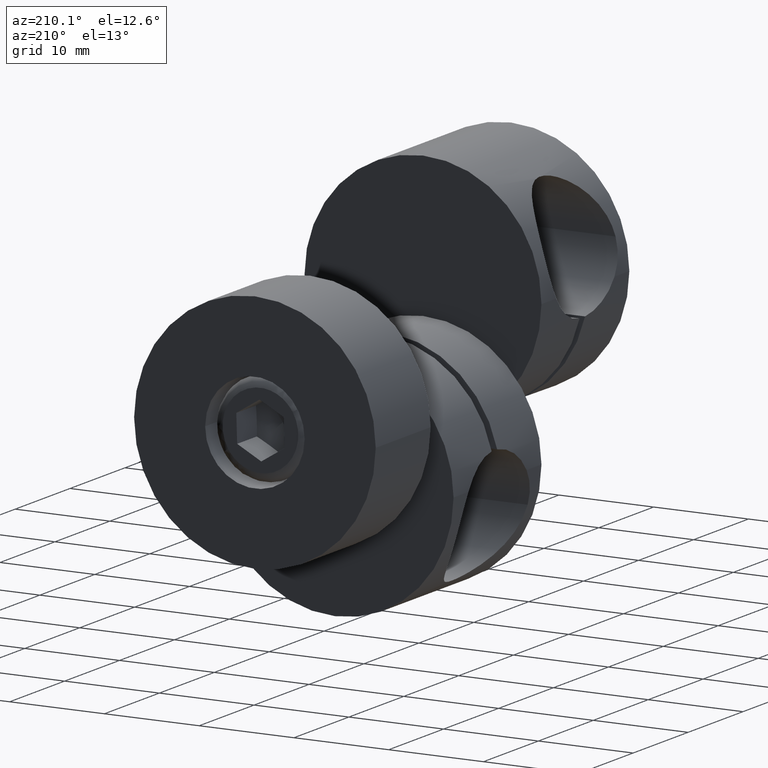
[diagram: clean part render]
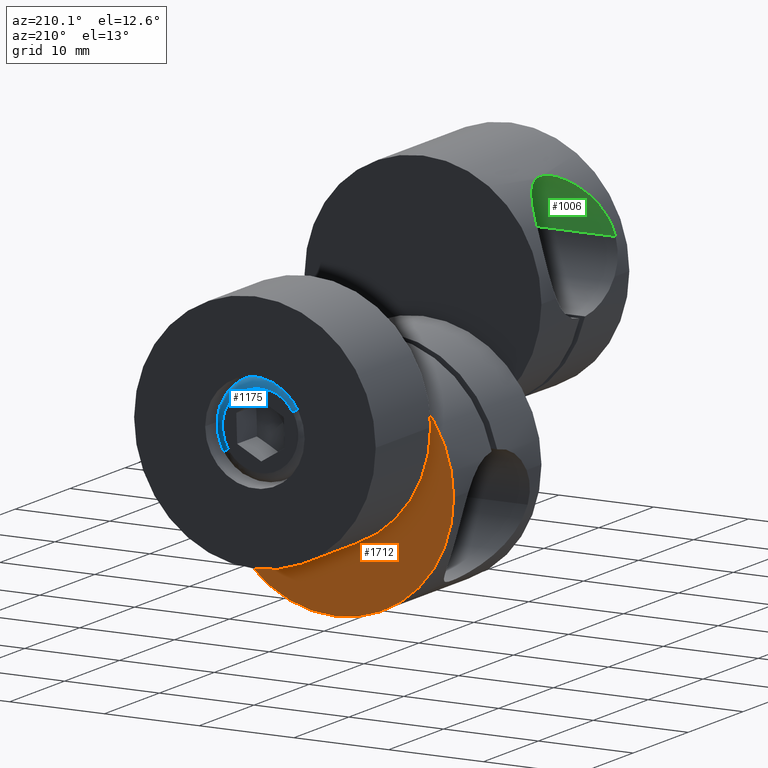
[diagram: same view with three faces highlighted in distinct colors, each labeled with its STEP entity id]
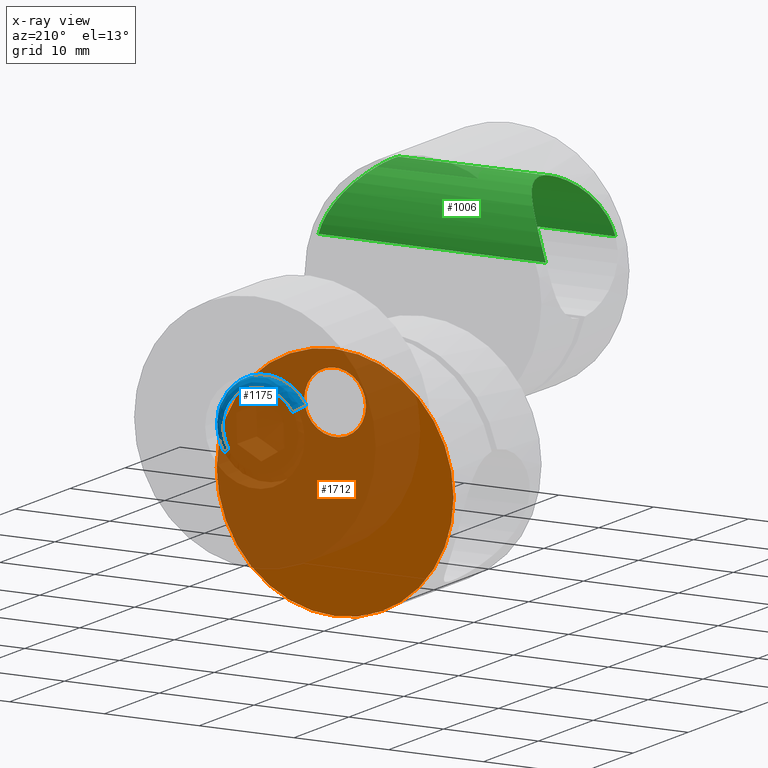
[diagram: x-ray of the same camera — body ghosted, the three highlighted faces saturated]
A machine part, auxiliary view with three faces highlighted in distinct colors.
The next image is the same camera in x-ray (body ghosted, the three faces saturated) — at least one of them is partly hidden behind the body in this view.
Their STEP definitions:

[orange] entity #1712 — the highlighted planar face has unit normal (0, -1, 0).
#39 = FACE_OUTER_BOUND ( 'NONE', #1307, .T. ) ;
#64 = DIRECTION ( 'NONE',  ( 0.0000000000000000000, -1.000000000000000000, 1.224606353822377300E-016 ) ) ;
#119 = CIRCLE ( 'NONE', #1918, 3.250000000000001800 ) ;
#193 = DIRECTION ( 'NONE',  ( 1.000000000000000000, 0.0000000000000000000, 0.0000000000000000000 ) ) ;
#203 = DIRECTION ( 'NONE',  ( 1.000000000000000000, 0.0000000000000000000, 0.0000000000000000000 ) ) ;
#215 = PLANE ( 'NONE',  #636 ) ;
#236 = CARTESIAN_POINT ( 'NONE',  ( 0.0000000000000000000, 8.000000000000001800, -9.796850830579018100E-016 ) ) ;
#315 = ORIENTED_EDGE ( 'NONE', *, *, #2139, .F. ) ;
#349 = EDGE_LOOP ( 'NONE', ( #512, #687 ) ) ;
#438 = DIRECTION ( 'NONE',  ( 1.000000000000000000, 0.0000000000000000000, 0.0000000000000000000 ) ) ;
#512 = ORIENTED_EDGE ( 'NONE', *, *, #1484, .T. ) ;
#570 = CARTESIAN_POINT ( 'NONE',  ( 0.0000000000000000000, 8.000000000000001800, -9.796850830579018100E-016 ) ) ;
#636 = AXIS2_PLACEMENT_3D ( 'NONE', #236, #1526, #203 ) ;
#645 = CARTESIAN_POINT ( 'NONE',  ( 3.250000000000002700, 8.000000000000003600, 7.500000000000000000 ) ) ;
#687 = ORIENTED_EDGE ( 'NONE', *, *, #1222, .T. ) ;
#817 = CARTESIAN_POINT ( 'NONE',  ( 12.50000000000000000, 8.000000000000001800, 1.530808498934191300E-015 ) ) ;
#863 = VERTEX_POINT ( 'NONE', #1167 ) ;
#913 = VERTEX_POINT ( 'NONE', #817 ) ;
#920 = VERTEX_POINT ( 'NONE', #645 ) ;
#1022 = EDGE_CURVE ( 'NONE', #913, #2284, #1843, .T. ) ;
#1057 = FACE_BOUND ( 'NONE', #349, .T. ) ;
#1124 = AXIS2_PLACEMENT_3D ( 'NONE', #570, #2045, #193 ) ;
#1126 = DIRECTION ( 'NONE',  ( 1.000000000000000000, 0.0000000000000000000, 0.0000000000000000000 ) ) ;
#1135 = CARTESIAN_POINT ( 'NONE',  ( 9.834144658631932200E-016, 8.000000000000003600, 7.500000000000000000 ) ) ;
#1167 = CARTESIAN_POINT ( 'NONE',  ( -3.250000000000000900, 8.000000000000003600, 7.500000000000000000 ) ) ;
#1222 = EDGE_CURVE ( 'NONE', #863, #920, #119, .T. ) ;
#1225 = CARTESIAN_POINT ( 'NONE',  ( 9.834144658631932200E-016, 8.000000000000003600, 7.500000000000000000 ) ) ;
#1307 = EDGE_LOOP ( 'NONE', ( #315, #1771 ) ) ;
#1354 = CARTESIAN_POINT ( 'NONE',  ( 0.0000000000000000000, 8.000000000000001800, -9.796850830579018100E-016 ) ) ;
#1484 = EDGE_CURVE ( 'NONE', #920, #863, #2263, .T. ) ;
#1490 = AXIS2_PLACEMENT_3D ( 'NONE', #1135, #1680, #1126 ) ;
#1526 = DIRECTION ( 'NONE',  ( 0.0000000000000000000, -1.000000000000000000, 1.224606353822377300E-016 ) ) ;
#1588 = AXIS2_PLACEMENT_3D ( 'NONE', #1354, #64, #438 ) ;
#1623 = DIRECTION ( 'NONE',  ( 1.000000000000000000, 0.0000000000000000000, 0.0000000000000000000 ) ) ;
#1680 = DIRECTION ( 'NONE',  ( 0.0000000000000000000, -1.000000000000000000, 1.224606353822377300E-016 ) ) ;
#1712 = ADVANCED_FACE ( 'NONE', ( #1057, #39 ), #215, .F. ) ;
#1771 = ORIENTED_EDGE ( 'NONE', *, *, #1022, .F. ) ;
#1843 = CIRCLE ( 'NONE', #1124, 12.50000000000000000 ) ;
#1918 = AXIS2_PLACEMENT_3D ( 'NONE', #1225, #2041, #1623 ) ;
#2034 = CIRCLE ( 'NONE', #1588, 12.50000000000000000 ) ;
#2041 = DIRECTION ( 'NONE',  ( 0.0000000000000000000, -1.000000000000000000, 1.224606353822377300E-016 ) ) ;
#2045 = DIRECTION ( 'NONE',  ( 0.0000000000000000000, -1.000000000000000000, 1.224606353822377300E-016 ) ) ;
#2112 = CARTESIAN_POINT ( 'NONE',  ( -12.50000000000000000, 8.000000000000001800, -3.851859888774471700E-031 ) ) ;
#2139 = EDGE_CURVE ( 'NONE', #2284, #913, #2034, .T. ) ;
#2263 = CIRCLE ( 'NONE', #1490, 3.250000000000001800 ) ;
#2284 = VERTEX_POINT ( 'NONE', #2112 ) ;

[blue] entity #1175 — the highlighted face is a freeform B-spline surface patch.
#35 = CARTESIAN_POINT ( 'NONE',  ( 3.400280457261473100, 20.59999999999999400, 5.393321853731394300 ) ) ;
#44 = DIRECTION ( 'NONE',  ( 6.268266966961504200E-016, -1.000000000000000000, 1.130397227726276000E-016 ) ) ;
#58 = CARTESIAN_POINT ( 'NONE',  ( 2.633347682835771100, 20.59999999999999400, 11.75035057157682800 ) ) ;
#97 = CARTESIAN_POINT ( 'NONE',  ( 9.517045937248344200, 21.18578643762691300, 13.36735346031791500 ) ) ;
#131 = VERTEX_POINT ( 'NONE', #1459 ) ;
#228 = CARTESIAN_POINT ( 'NONE',  ( 0.8130758352757235800, 21.59999999999998400, 16.40723906079152900 ) ) ;
#283 = CARTESIAN_POINT ( 'NONE',  ( 1.016344794094668200, 20.59999999999999100, 18.63404882598942100 ) ) ;
#292 = CARTESIAN_POINT ( 'NONE',  ( 0.8130758352757240200, 21.59999999999999400, 16.40723906079147600 ) ) ;
#323 = ORIENTED_EDGE ( 'NONE', *, *, #1595, .F. ) ;
#376 = DIRECTION ( 'NONE',  ( 0.8500701143153676100, 0.0000000000000000000, -0.5266695365671514300 ) ) ;
#379 = VERTEX_POINT ( 'NONE', #58 ) ;
#382 = VERTEX_POINT ( 'NONE', #1886 ) ;
#395 = CARTESIAN_POINT ( 'NONE',  ( 3.400280457261471300, 21.59999999999999400, 5.393321853731390700 ) ) ;
#455 = CARTESIAN_POINT ( 'NONE',  ( 4.250350571576837500, 20.59999999999999400, 4.866652317164239100 ) ) ;
#460 = CARTESIAN_POINT ( 'NONE',  ( 0.9321480345424016900, 21.60000000000000900, 17.71167402041957900 ) ) ;
#467 = AXIS2_PLACEMENT_3D ( 'NONE', #1783, #678, #1423 ) ;
#538 = ORIENTED_EDGE ( 'NONE', *, *, #1267, .F. ) ;
#552 = CARTESIAN_POINT ( 'NONE',  ( -3.400280457261455800, 21.59999999999999400, 9.606678146268585300 ) ) ;
#557 = CIRCLE ( 'NONE', #628, 1.000000000000000400 ) ;
#628 = AXIS2_PLACEMENT_3D ( 'NONE', #1954, #1033, #841 ) ;
#660 = CARTESIAN_POINT ( 'NONE',  ( 7.613636749798623700, 21.59999999999999800, 12.19388276825430300 ) ) ;
#678 = DIRECTION ( 'NONE',  ( 6.268266966961504200E-016, -1.000000000000000000, 1.130397227726276000E-016 ) ) ;
#692 = EDGE_CURVE ( 'NONE', #382, #131, #2188, .T. ) ;
#697 = VERTEX_POINT ( 'NONE', #1546 ) ;
#727 = DIRECTION ( 'NONE',  ( 0.5266695365671528700, -4.368582271026613000E-016, 0.8500701143153667200 ) ) ;
#745 = EDGE_CURVE ( 'NONE', #697, #382, #1270, .T. ) ;
#831 = CARTESIAN_POINT ( 'NONE',  ( -4.250350571576835700, 21.18578643762690600, 10.13334768283574000 ) ) ;
#841 = DIRECTION ( 'NONE',  ( -0.8500701143153672800, 0.0000000000000000000, 0.5266695365671521000 ) ) ;
#843 = CARTESIAN_POINT ( 'NONE',  ( 1.016344794094663900, 21.18578643762690600, 18.63404882598942400 ) ) ;
#970 =( BOUNDED_SURFACE ( )  B_SPLINE_SURFACE ( 3, 3, ( 
 ( #455, #1576, #283, #1946 ),
 ( #2315, #97, #843, #831 ),
 ( #2133, #1016, #460, #1025 ),
 ( #1938, #660, #292, #1376 ) ),
 .UNSPECIFIED., .F., .F., .F. ) 
 B_SPLINE_SURFACE_WITH_KNOTS ( ( 4, 4 ),
 ( 4, 4 ),
 ( 0.0000000000000000000, 1.000000000000000000 ),
 ( 0.0000000000000000000, 1.000000000000000000 ),
 .UNSPECIFIED. ) 
 GEOMETRIC_REPRESENTATION_ITEM ( )  RATIONAL_B_SPLINE_SURFACE ( (
 ( 1.000000000000000000, 0.3333333333333330900, 0.3333333333333330900, 1.000000000000000000),
 ( 0.8047378541243590500, 0.2682459513747861800, 0.2682459513747861800, 0.8047378541243590500),
 ( 0.8047378541243590500, 0.2682459513747861800, 0.2682459513747861800, 0.8047378541243590500),
 ( 1.000000000000000000, 0.3333333333333330900, 0.3333333333333330900, 1.000000000000000000) ) ) 
 REPRESENTATION_ITEM ( '' )  SURFACE ( )  );
#1016 = CARTESIAN_POINT ( 'NONE',  ( 8.728628037061113800, 21.60000000000001200, 12.88128598461782400 ) ) ;
#1025 = CARTESIAN_POINT ( 'NONE',  ( -3.898240001259352100, 21.60000000000000500, 9.915194017900866200 ) ) ;
#1033 = DIRECTION ( 'NONE',  ( -0.5266695365671529800, -1.289302658935427100E-015, -0.8500701143153666100 ) ) ;
#1036 = EDGE_LOOP ( 'NONE', ( #323, #538, #1852, #1402, #2178 ) ) ;
#1082 = VERTEX_POINT ( 'NONE', #1152 ) ;
#1123 = CARTESIAN_POINT ( 'NONE',  ( 7.613636749798670800, 21.59999999999999800, 12.19388276825432600 ) ) ;
#1152 = CARTESIAN_POINT ( 'NONE',  ( -4.250350571576832200, 20.59999999999999100, 10.13334768283574200 ) ) ;
#1164 = DIRECTION ( 'NONE',  ( 0.5266695365671527600, -6.938893903907231300E-016, 0.8500701143153667200 ) ) ;
#1175 = ADVANCED_FACE ( 'NONE', ( #1384 ), #970, .T. ) ;
#1267 = EDGE_CURVE ( 'NONE', #379, #1082, #1594, .T. ) ;
#1270 = CIRCLE ( 'NONE', #1696, 1.000000000000000000 ) ;
#1339 = CIRCLE ( 'NONE', #1864, 4.999999999999998200 ) ;
#1376 = CARTESIAN_POINT ( 'NONE',  ( -3.400280457261446500, 21.59999999999999100, 9.606678146268576400 ) ) ;
#1384 = FACE_OUTER_BOUND ( 'NONE', #1036, .T. ) ;
#1402 = ORIENTED_EDGE ( 'NONE', *, *, #745, .T. ) ;
#1423 = DIRECTION ( 'NONE',  ( 0.5266695365671527600, -6.938893903907231300E-016, 0.8500701143153667200 ) ) ;
#1459 = CARTESIAN_POINT ( 'NONE',  ( -3.400280457261455800, 21.59999999999999400, 9.606678146268585300 ) ) ;
#1546 = CARTESIAN_POINT ( 'NONE',  ( 4.250350571576837500, 20.59999999999999800, 4.866652317164242600 ) ) ;
#1576 = CARTESIAN_POINT ( 'NONE',  ( 9.517045937248347800, 20.59999999999999800, 13.36735346031791500 ) ) ;
#1594 = CIRCLE ( 'NONE', #467, 4.999999999999998200 ) ;
#1595 = EDGE_CURVE ( 'NONE', #1082, #131, #557, .T. ) ;
#1696 = AXIS2_PLACEMENT_3D ( 'NONE', #35, #727, #376 ) ;
#1711 = EDGE_CURVE ( 'NONE', #697, #379, #1339, .T. ) ;
#1783 = CARTESIAN_POINT ( 'NONE',  ( 3.467239618993475800E-015, 20.59999999999999400, 7.499999999999992000 ) ) ;
#1852 = ORIENTED_EDGE ( 'NONE', *, *, #1711, .F. ) ;
#1864 = AXIS2_PLACEMENT_3D ( 'NONE', #1879, #44, #1164 ) ;
#1879 = CARTESIAN_POINT ( 'NONE',  ( 3.467239618993475800E-015, 20.59999999999999400, 7.499999999999992000 ) ) ;
#1886 = CARTESIAN_POINT ( 'NONE',  ( 3.400280457261471300, 21.59999999999999400, 5.393321853731390700 ) ) ;
#1938 = CARTESIAN_POINT ( 'NONE',  ( 3.400280457261449600, 21.59999999999999400, 5.393321853731405800 ) ) ;
#1946 = CARTESIAN_POINT ( 'NONE',  ( -4.250350571576835700, 20.59999999999998700, 10.13334768283574200 ) ) ;
#1954 = CARTESIAN_POINT ( 'NONE',  ( -3.400280457261467800, 20.59999999999999100, 9.606678146268590600 ) ) ;
#2133 = CARTESIAN_POINT ( 'NONE',  ( 3.898240001259354800, 21.60000000000000500, 5.084805982099114300 ) ) ;
#2178 = ORIENTED_EDGE ( 'NONE', *, *, #692, .T. ) ;
#2188 =( BOUNDED_CURVE ( )  B_SPLINE_CURVE ( 3, ( #395, #1123, #228, #552 ),
 .UNSPECIFIED., .F., .F. ) 
 B_SPLINE_CURVE_WITH_KNOTS ( ( 4, 4 ),
 ( 0.7500000000000000000, 1.250000000000000000 ),
 .UNSPECIFIED. ) 
 CURVE ( )  GEOMETRIC_REPRESENTATION_ITEM ( )  RATIONAL_B_SPLINE_CURVE ( ( 1.000000000000000000, 0.3333333333333330400, 0.3333333333333330400, 1.000000000000000000 ) ) 
 REPRESENTATION_ITEM ( '' )  );
#2315 = CARTESIAN_POINT ( 'NONE',  ( 4.250350571576837500, 21.18578643762690900, 4.866652317164240000 ) ) ;

[green] entity #1006 — the highlighted cylindrical surface (partial cylindrical patch) has radius 6.35 mm, axis along (1, 0, -0).
#18 = CARTESIAN_POINT ( 'NONE',  ( 7.820851540314699000, -14.86360298976977600, 24.75140350891478400 ) ) ;
#41 = CARTESIAN_POINT ( 'NONE',  ( 11.99999999999999600, -22.35000000000000100, 18.50000000000000400 ) ) ;
#85 = CARTESIAN_POINT ( 'NONE',  ( -10.11379831694967800, -21.06024554740567800, 22.35662812011513600 ) ) ;
#106 = ORIENTED_EDGE ( 'NONE', *, *, #1330, .F. ) ;
#150 = CARTESIAN_POINT ( 'NONE',  ( 11.18405761449237300, -22.00083271321781500, 20.58707682559041200 ) ) ;
#157 = CARTESIAN_POINT ( 'NONE',  ( 8.745003058484965000, -19.29364196974166700, 23.93284983060709700 ) ) ;
#164 = CARTESIAN_POINT ( 'NONE',  ( 8.249108199355431400, -18.37585979590484800, 24.39244461895301100 ) ) ;
#172 = CARTESIAN_POINT ( 'NONE',  ( 8.003614251583091000, -17.76965135301139400, 24.60223377175134400 ) ) ;
#178 = CARTESIAN_POINT ( 'NONE',  ( 7.696267287448138800, -15.76492502467570500, 24.84974466709606100 ) ) ;
#183 = CARTESIAN_POINT ( 'NONE',  ( 10.55868049368674700, -10.50795749927299700, 21.69383862105067000 ) ) ;
#190 = VECTOR ( 'NONE', #716, 1000.000000000000000 ) ;
#210 = CARTESIAN_POINT ( 'NONE',  ( 9.883194708088971900, -11.18792788686209500, 22.66194765786493500 ) ) ;
#235 = CARTESIAN_POINT ( 'NONE',  ( -11.99999999999999500, -22.35000000000000500, 18.50000000000000400 ) ) ;
#241 = CARTESIAN_POINT ( 'NONE',  ( 11.99999999999999600, -9.650000000000003900, 18.50000000000000400 ) ) ;
#271 = EDGE_LOOP ( 'NONE', ( #1801, #1856, #1166, #106 ) ) ;
#281 = CARTESIAN_POINT ( 'NONE',  ( -9.421854664400875400, -20.26311719731383900, 23.22259103561462400 ) ) ;
#335 = CARTESIAN_POINT ( 'NONE',  ( 7.933297874307566400, -17.55692154291006800, 24.66013807502368500 ) ) ;
#338 = VERTEX_POINT ( 'NONE', #235 ) ;
#352 = CARTESIAN_POINT ( 'NONE',  ( 7.773042468864702800, -16.90451814232297400, 24.78934861600203700 ) ) ;
#359 = CARTESIAN_POINT ( 'NONE',  ( 7.712339375000630600, -15.53844428207591300, 24.83724457953849200 ) ) ;
#371 = CARTESIAN_POINT ( 'NONE',  ( 9.077351499989207500, -12.20510128035131100, 23.59515723130119000 ) ) ;
#398 = VERTEX_POINT ( 'NONE', #899 ) ;
#404 = CARTESIAN_POINT ( 'NONE',  ( -11.63357865819251600, -9.738649087215051700, 19.57819581969985000 ) ) ;
#413 = CARTESIAN_POINT ( 'NONE',  ( -7.712580160711339300, -16.46437835146180700, 24.83705692832438700 ) ) ;
#433 = CARTESIAN_POINT ( 'NONE',  ( -9.875223424692096700, -11.19692353071803700, 22.67209253072386200 ) ) ;
#464 = EDGE_CURVE ( 'NONE', #398, #1814, #2104, .T. ) ;
#477 = CARTESIAN_POINT ( 'NONE',  ( -12.50000000000000000, -22.35000000000000100, 18.50000000000000400 ) ) ;
#515 = CARTESIAN_POINT ( 'NONE',  ( 11.08419354500064300, -21.92914183719555900, 20.78243229142778500 ) ) ;
#526 = CARTESIAN_POINT ( 'NONE',  ( 11.72009432775302600, -22.30430489700002600, 19.36900479105479200 ) ) ;
#562 = CARTESIAN_POINT ( 'NONE',  ( 11.99999999999999600, -9.650000000000003900, 18.50000000000000400 ) ) ;
#568 = CARTESIAN_POINT ( 'NONE',  ( 7.994971991289817800, -14.21513478486653500, 24.61003536391857300 ) ) ;
#596 = CARTESIAN_POINT ( 'NONE',  ( -9.184879994246079700, -12.04570919793313000, 23.48469928927593700 ) ) ;
#603 = CARTESIAN_POINT ( 'NONE',  ( -7.821665716239017700, -17.13988180292606200, 24.75075027787065800 ) ) ;
#619 = CARTESIAN_POINT ( 'NONE',  ( -7.772282499667881900, -15.09945845458842600, 24.78995150445972900 ) ) ;
#639 = CARTESIAN_POINT ( 'NONE',  ( -8.164901289436915700, -18.18666484462011500, 24.46546692029119900 ) ) ;
#653 = CARTESIAN_POINT ( 'NONE',  ( -10.56196636504767200, -21.50063361778251200, 21.69729499105458000 ) ) ;
#706 = CARTESIAN_POINT ( 'NONE',  ( 9.416928619070253200, -20.25682373643856900, 23.22817276048996500 ) ) ;
#716 = DIRECTION ( 'NONE',  ( 1.000000000000000000, 3.204747427460359600E-031, -1.361284592032124700E-061 ) ) ;
#717 = CARTESIAN_POINT ( 'NONE',  ( 10.11293218973824900, -10.94069222204211800, 22.35776870205158300 ) ) ;
#723 = CARTESIAN_POINT ( 'NONE',  ( 8.746629100433722200, -12.69345164218689200, 23.93569424947098100 ) ) ;
#748 = CARTESIAN_POINT ( 'NONE',  ( 11.37705538410025100, -9.866507575217276800, 20.19741653497462200 ) ) ;
#801 = CARTESIAN_POINT ( 'NONE',  ( -10.55847277431794700, -10.50248030559855800, 21.70292606161307000 ) ) ;
#836 = CARTESIAN_POINT ( 'NONE',  ( -8.747412649429167100, -19.30782778572609000, 23.93493986309286800 ) ) ;
#889 = EDGE_CURVE ( 'NONE', #398, #338, #2118, .T. ) ;
#899 = CARTESIAN_POINT ( 'NONE',  ( -11.99999999999999600, -9.650000000000002100, 18.50000000000000400 ) ) ;
#903 = CARTESIAN_POINT ( 'NONE',  ( 10.56099917562497100, -21.49979480329122700, 21.69888992109792600 ) ) ;
#977 = CARTESIAN_POINT ( 'NONE',  ( -7.937700410323477000, -17.57111267156213700, 24.65652617424785500 ) ) ;
#984 = CARTESIAN_POINT ( 'NONE',  ( -11.99999999999999600, -9.650000000000002100, 18.50000000000000400 ) ) ;
#993 = CARTESIAN_POINT ( 'NONE',  ( -11.37672221323947100, -9.866728368706864300, 20.19810630155466300 ) ) ;
#1006 = ADVANCED_FACE ( 'NONE', ( #2241 ), #1098, .F. ) ;
#1013 = CARTESIAN_POINT ( 'NONE',  ( -11.63541160941633600, -22.26217616823258900, 19.57358650153655000 ) ) ;
#1023 = CARTESIAN_POINT ( 'NONE',  ( -9.884119251662198700, -20.81305468029470500, 22.66071375754134500 ) ) ;
#1030 = CARTESIAN_POINT ( 'NONE',  ( -11.93673990818753900, -22.34999999999999800, 18.71689174335699600 ) ) ;
#1040 = LINE ( 'NONE', #477, #1902 ) ;
#1083 = VERTEX_POINT ( 'NONE', #41 ) ;
#1089 = CARTESIAN_POINT ( 'NONE',  ( 9.187446828654650200, -19.95767152037318900, 23.48188191881356300 ) ) ;
#1098 = CYLINDRICAL_SURFACE ( 'NONE', #2132, 6.349999999999997900 ) ;
#1136 = DIRECTION ( 'NONE',  ( 0.0000000000000000000, -1.000000000000000000, 0.0000000000000000000 ) ) ;
#1158 = CARTESIAN_POINT ( 'NONE',  ( -8.153834811427994800, -13.81796123887791900, 24.47776530966229200 ) ) ;
#1166 = ORIENTED_EDGE ( 'NONE', *, *, #1403, .F. ) ;
#1195 = CARTESIAN_POINT ( 'NONE',  ( -7.695468237215280300, -15.78313730550912700, 24.85036897717198600 ) ) ;
#1220 = CARTESIAN_POINT ( 'NONE',  ( -11.37755318207007900, -22.13386114686770200, 20.19646714792639100 ) ) ;
#1236 = DIRECTION ( 'NONE',  ( 1.000000000000000000, 3.204747427460359600E-031, -1.361284592032124700E-061 ) ) ;
#1264 = CARTESIAN_POINT ( 'NONE',  ( 8.854440919873198400, -19.46564190738588400, 23.82463886088196100 ) ) ;
#1275 = CARTESIAN_POINT ( 'NONE',  ( 8.161681695429562600, -18.17921087255636100, 24.46824621553516400 ) ) ;
#1282 = CARTESIAN_POINT ( 'NONE',  ( 7.695623569763851500, -16.22107201019609200, 24.85024761309717800 ) ) ;
#1289 = CARTESIAN_POINT ( 'NONE',  ( 10.88182748457112400, -10.22798769451626400, 21.15480014913355000 ) ) ;
#1301 = CARTESIAN_POINT ( 'NONE',  ( 10.77541073498734100, -10.31644025149207500, 21.33906402750045600 ) ) ;
#1314 = CARTESIAN_POINT ( 'NONE',  ( 8.156837939394556300, -13.81035413199600500, 24.47527253134464000 ) ) ;
#1330 = EDGE_CURVE ( 'NONE', #338, #1083, #1040, .T. ) ;
#1336 = CARTESIAN_POINT ( 'NONE',  ( -7.696435163091957000, -16.23795784948159200, 24.84961350291182600 ) ) ;
#1347 = CARTESIAN_POINT ( 'NONE',  ( -11.93579502033044900, -9.650000000000003900, 18.72013135886702200 ) ) ;
#1364 = CARTESIAN_POINT ( 'NONE',  ( -11.18373013197746600, -9.993342263189442000, 20.59973147559777100 ) ) ;
#1383 = CARTESIAN_POINT ( 'NONE',  ( -8.536851719730592000, -18.95821429063340700, 24.13436354964429100 ) ) ;
#1401 = CARTESIAN_POINT ( 'NONE',  ( -11.99999999999999500, -22.35000000000000500, 18.50000000000000400 ) ) ;
#1403 = EDGE_CURVE ( 'NONE', #1083, #1814, #1619, .T. ) ;
#1441 = CARTESIAN_POINT ( 'NONE',  ( 8.436330654495131800, -18.75572511087721100, 24.22464780318458100 ) ) ;
#1458 = CARTESIAN_POINT ( 'NONE',  ( 7.818298218894098800, -17.12504548057348300, 24.75344532723961800 ) ) ;
#1483 = CARTESIAN_POINT ( 'NONE',  ( 11.18807998118337800, -9.990309230073430400, 20.59104672253882000 ) ) ;
#1501 = CARTESIAN_POINT ( 'NONE',  ( 11.71586913483928200, -9.705276431460848800, 19.36352728477704200 ) ) ;
#1548 = CARTESIAN_POINT ( 'NONE',  ( -11.71423076642574100, -9.705903146190255600, 19.36787943973108000 ) ) ;
#1573 = CARTESIAN_POINT ( 'NONE',  ( -11.71716646865052500, -22.29516887287793000, 19.35997657364655200 ) ) ;
#1619 = B_SPLINE_CURVE_WITH_KNOTS ( 'NONE', 3,
 ( #2356, #1643, #526, #2387, #2371, #150, #515, #1995, #903, #2364, #1809, #706, #1089, #1264, #157, #2379, #1441, #164, #1275, #172, #335, #1458, #352, #1651, #1282, #178, #359, #1847, #18, #568, #1314, #2037, #723, #371, #2049, #1674, #1867, #210, #717, #2396, #183, #1301, #1289, #1483, #748, #2234, #1501, #1838, #1850, #562 ),
 .UNSPECIFIED., .F., .F.,
 ( 4, 2, 2, 2, 2, 2, 2, 2, 2, 2, 2, 2, 2, 2, 2, 2, 2, 2, 2, 2, 2, 2, 2, 2, 4 ),
 ( 0.0000000000000000000, 0.001360762488153682400, 0.002041143732230517600, 0.002721524976307353000, 0.004082287464461015200, 0.005443049952614677400, 0.006803812440768340500, 0.007484193684845167700, 0.008164574928921995700, 0.008844956172998824600, 0.009525337417075651800, 0.01020571866115247900, 0.01088609990522930600, 0.01156648114930613500, 0.01224686239338296200, 0.01360762488153661700, 0.01496838736969027300, 0.01564876861376709700, 0.01632914985784392200, 0.01768991234599756600, 0.01837029359007438800, 0.01905067483415121000, 0.02041143732230486400, 0.02109181856638169300, 0.02177219981045852600 ),
 .UNSPECIFIED. ) ;
#1643 = CARTESIAN_POINT ( 'NONE',  ( 11.87089798146795000, -22.35000000000000500, 18.94263549210989300 ) ) ;
#1651 = CARTESIAN_POINT ( 'NONE',  ( 7.711513311956804500, -16.45298743776331900, 24.83789093189736300 ) ) ;
#1674 = CARTESIAN_POINT ( 'NONE',  ( 9.419033601790110000, -11.74708995012870700, 23.21956072107618500 ) ) ;
#1702 = CARTESIAN_POINT ( 'NONE',  ( -8.527899989225503000, -13.05797427936322600, 24.14264617990112800 ) ) ;
#1710 = CARTESIAN_POINT ( 'NONE',  ( -7.775020389613388300, -16.91529171424246100, 24.78778012051705600 ) ) ;
#1722 = CARTESIAN_POINT ( 'NONE',  ( -8.739292604860850100, -12.70491248697650900, 23.94298089591865900 ) ) ;
#1731 = CARTESIAN_POINT ( 'NONE',  ( -7.989272425751635400, -14.23162927425799800, 24.61474263821067500 ) ) ;
#1749 = CARTESIAN_POINT ( 'NONE',  ( -8.007305542750337700, -17.78006558611808100, 24.59915282878731100 ) ) ;
#1756 = CARTESIAN_POINT ( 'NONE',  ( -9.188820750176910600, -19.95937313895705100, 23.48032733080497200 ) ) ;
#1801 = ORIENTED_EDGE ( 'NONE', *, *, #889, .F. ) ;
#1809 = CARTESIAN_POINT ( 'NONE',  ( 9.877877050669967600, -20.80605136560908300, 22.66869718824397500 ) ) ;
#1814 = VERTEX_POINT ( 'NONE', #241 ) ;
#1838 = CARTESIAN_POINT ( 'NONE',  ( 11.86717139234897200, -9.661125803604994300, 18.93347214230475100 ) ) ;
#1847 = CARTESIAN_POINT ( 'NONE',  ( 7.774342294686341000, -15.08853727254623900, 24.78831759997068600 ) ) ;
#1850 = CARTESIAN_POINT ( 'NONE',  ( 11.93662322405060300, -9.650000000000003900, 18.71729180325505500 ) ) ;
#1856 = ORIENTED_EDGE ( 'NONE', *, *, #464, .T. ) ;
#1867 = CARTESIAN_POINT ( 'NONE',  ( 9.535589600467917000, -11.60163619420585800, 23.08429192068870600 ) ) ;
#1902 = VECTOR ( 'NONE', #1236, 1000.000000000000000 ) ;
#1929 = CARTESIAN_POINT ( 'NONE',  ( -10.10749190041718200, -10.94627742222218100, 22.36540376330218300 ) ) ;
#1935 = CARTESIAN_POINT ( 'NONE',  ( -11.86754431470194000, -22.33891553458818500, 18.93227386068171500 ) ) ;
#1942 = CARTESIAN_POINT ( 'NONE',  ( -11.18855303449839900, -22.00996609058667300, 20.58999436468566200 ) ) ;
#1995 = CARTESIAN_POINT ( 'NONE',  ( 10.77729704649312700, -21.69073348209102600, 21.34691636651794200 ) ) ;
#2037 = CARTESIAN_POINT ( 'NONE',  ( 8.535821676877070300, -13.04342960734773300, 24.13534580699364100 ) ) ;
#2049 = CARTESIAN_POINT ( 'NONE',  ( 9.190143329839191500, -12.04856991470383500, 23.47470577755486700 ) ) ;
#2085 = CARTESIAN_POINT ( 'NONE',  ( -10.77495817450962100, -10.31127811460628300, 21.35083369340352600 ) ) ;
#2104 = LINE ( 'NONE', #2391, #190 ) ;
#2107 = CARTESIAN_POINT ( 'NONE',  ( -7.817472112605883300, -14.87868517605181900, 24.75410514817246400 ) ) ;
#2118 = B_SPLINE_CURVE_WITH_KNOTS ( 'NONE', 3,
 ( #984, #1347, #2256, #1548, #404, #993, #1364, #2085, #801, #1929, #433, #2265, #596, #1722, #1702, #1158, #1731, #2107, #619, #2295, #1195, #1336, #413, #1710, #603, #977, #1749, #639, #2140, #1383, #836, #1756, #281, #1023, #85, #653, #2312, #1942, #1220, #1013, #1573, #1935, #1030, #1401 ),
 .UNSPECIFIED., .F., .F.,
 ( 4, 2, 2, 2, 2, 2, 2, 2, 2, 2, 2, 2, 2, 2, 2, 2, 2, 2, 2, 2, 2, 4 ),
 ( 0.003737103604127493100, 0.004418552228155067800, 0.005100000852182642500, 0.006462898100237783300, 0.007825795348292922300, 0.009188692596348063000, 0.01055158984440320400, 0.01191448709245834300, 0.01327738434051348300, 0.01395883296454105400, 0.01464028158856862600, 0.01532173021259619800, 0.01600317883662377000, 0.01668462746065134400, 0.01736607608467891400, 0.01872897333273405200, 0.02009187058078918900, 0.02145476782884433000, 0.02281766507689946700, 0.02418056232495460400, 0.02486201094898217400, 0.02554345957300974800 ),
 .UNSPECIFIED. ) ;
#2132 = AXIS2_PLACEMENT_3D ( 'NONE', #2235, #2217, #1136 ) ;
#2140 = CARTESIAN_POINT ( 'NONE',  ( -8.253447907162367900, -18.38536662369118000, 24.38864773698488300 ) ) ;
#2217 = DIRECTION ( 'NONE',  ( 1.000000000000000000, 3.204747427460359600E-031, -1.361284592032124700E-061 ) ) ;
#2234 = CARTESIAN_POINT ( 'NONE',  ( 11.63411435383325300, -9.738409409615998800, 19.57684554738947800 ) ) ;
#2235 = CARTESIAN_POINT ( 'NONE',  ( -12.50000000000000000, -16.00000000000000400, 18.50000000000000400 ) ) ;
#2241 = FACE_OUTER_BOUND ( 'NONE', #271, .T. ) ;
#2256 = CARTESIAN_POINT ( 'NONE',  ( -11.86515742727545400, -9.661568411121106000, 18.93949393641761200 ) ) ;
#2265 = CARTESIAN_POINT ( 'NONE',  ( -9.414682306291728900, -11.74604172400495500, 23.23072284548411300 ) ) ;
#2295 = CARTESIAN_POINT ( 'NONE',  ( -7.710947415730126800, -15.55280065328941500, 24.83833398834181900 ) ) ;
#2312 = CARTESIAN_POINT ( 'NONE',  ( -10.78168856565979700, -21.69438709623222300, 21.33931760334827700 ) ) ;
#2356 = CARTESIAN_POINT ( 'NONE',  ( 11.99999999999999600, -22.35000000000000100, 18.50000000000000400 ) ) ;
#2364 = CARTESIAN_POINT ( 'NONE',  ( 10.11135239670333700, -21.05772965189010300, 22.36005315688822700 ) ) ;
#2371 = CARTESIAN_POINT ( 'NONE',  ( 11.37405975850211000, -22.12470284342203900, 20.18934839737680800 ) ) ;
#2379 = CARTESIAN_POINT ( 'NONE',  ( 8.536144290622930300, -18.93892735819734700, 24.13264064982051200 ) ) ;
#2387 = CARTESIAN_POINT ( 'NONE',  ( 11.46428156711416000, -22.17702421920693800, 19.98697820617340800 ) ) ;
#2391 = CARTESIAN_POINT ( 'NONE',  ( -12.50000000000000000, -9.650000000000003900, 18.50000000000000400 ) ) ;
#2396 = CARTESIAN_POINT ( 'NONE',  ( 10.44837182472715800, -10.61094602176700400, 21.86447854166877000 ) ) ;